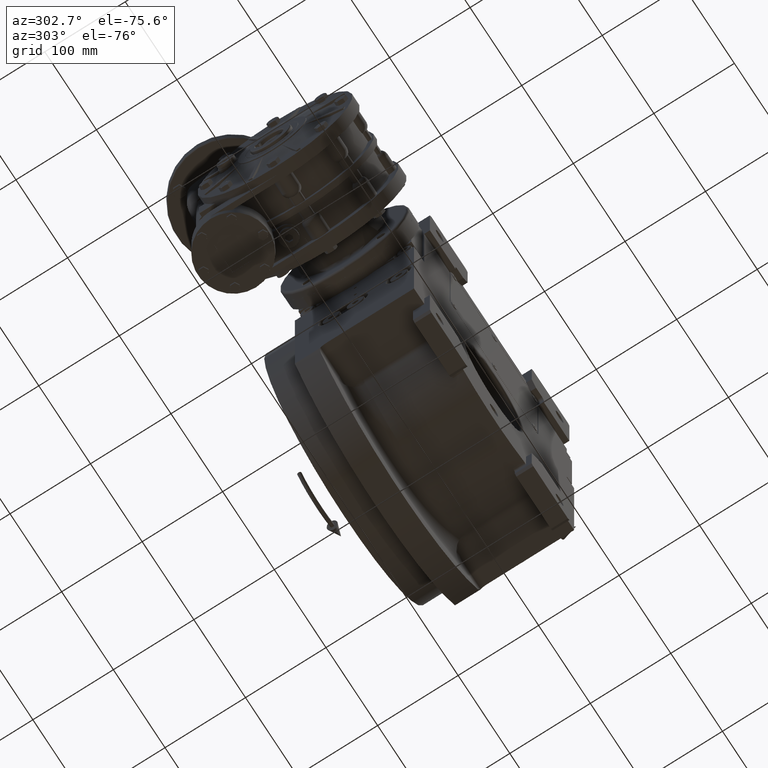
[diagram: clean part render]
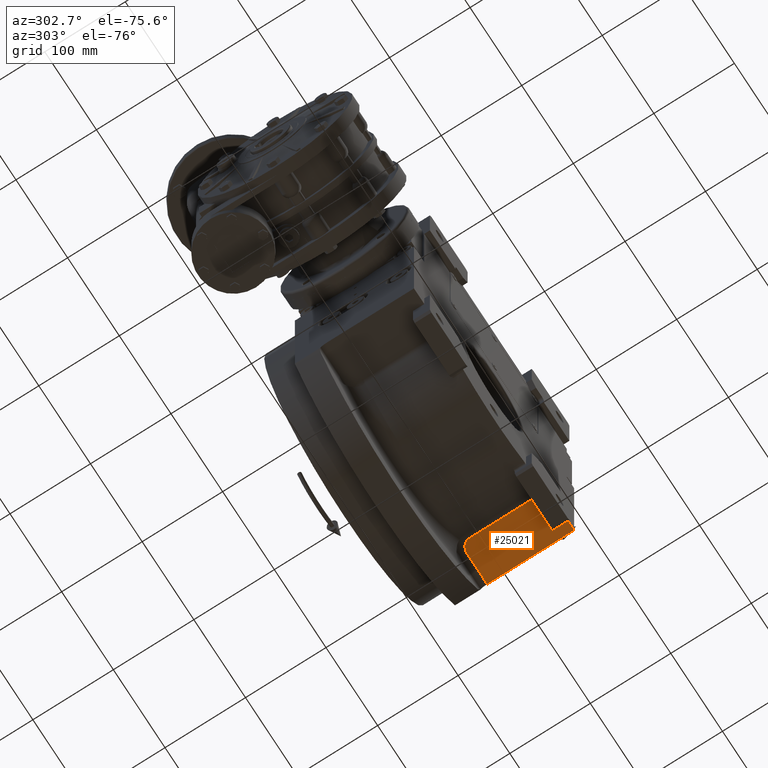
[diagram: same view with one face highlighted and labeled with its STEP entity id]
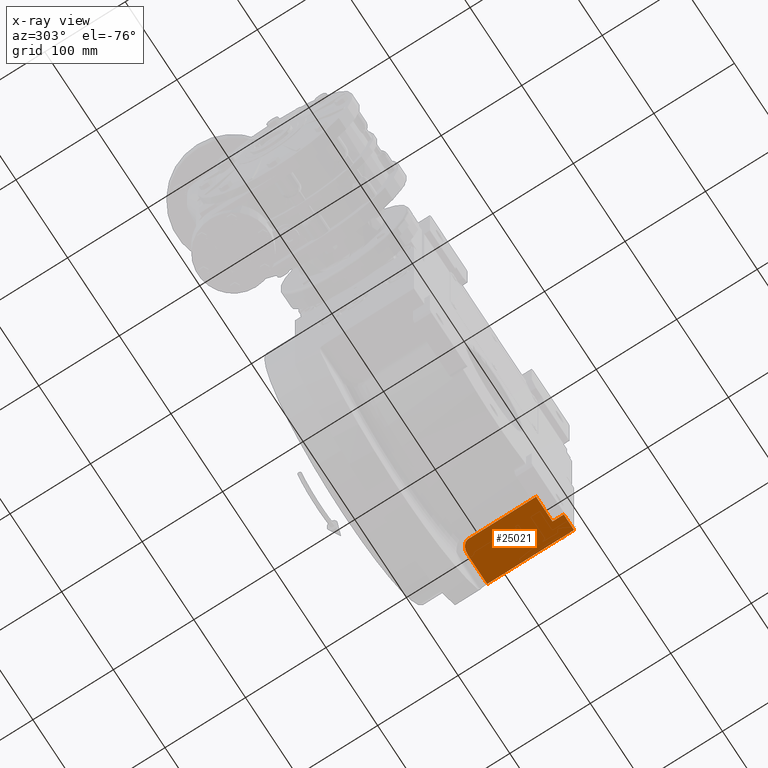
[diagram: x-ray of the same camera — body ghosted, the highlighted face saturated]
A machine part, auxiliary view. The second image highlights one B-rep face of the part: STEP entity #25021.
The next image is the same camera in x-ray: the body ghosted, the highlighted face saturated — about 0% of this face is hidden behind the body in this view.
In plain terms, the highlighted planar face has unit normal (0, 0, 1).
Its self-contained STEP definition (entity closure, byte-faithful):
#1584 = DIRECTION ( 'NONE',  ( 1.000000000000000000, 0.000000000000000000, 0.000000000000000000 ) ) ;
#3295 = PLANE ( 'NONE',  #91936 ) ;
#10238 = CARTESIAN_POINT ( 'NONE',  ( 155.0000000000000000, -73.00000000000000000, -96.00000000000000000 ) ) ;
#11134 = VECTOR ( 'NONE', #45373, 1000.000000000000000 ) ;
#12552 = B_SPLINE_CURVE_WITH_KNOTS ( 'NONE', 3,
 ( #47506, #13691, #111000, #39348, #84226, #48067, #67877, #57988, #31163, #101111 ),
 .UNSPECIFIED., .F., .F.,
 ( 4, 1, 1, 1, 1, 1, 1, 4 ),
 ( 0.000000000000000000, 0.1103361437858060012, 0.2306205650528145024, 0.3618368565218019750, 0.5071284336610569765, 0.6649997645452609962, 0.8312744473888740160, 1.000000000000000000 ),
 .UNSPECIFIED. ) ;
#13691 = CARTESIAN_POINT ( 'NONE',  ( 103.2967456917183995, 25.71117700569995179, -96.00000000000000000 ) ) ;
#19160 = VERTEX_POINT ( 'NONE', #51926 ) ;
#25021 = ADVANCED_FACE ( 'NONE', ( #92491 ), #3295, .F. ) ;
#27517 = ORIENTED_EDGE ( 'NONE', *, *, #93960, .T. ) ;
#28041 = LINE ( 'NONE', #63594, #85946 ) ;
#30118 = LINE ( 'NONE', #83736, #99934 ) ;
#31163 = CARTESIAN_POINT ( 'NONE',  ( 116.0970483025350006, 34.99988630677020041, -96.00000000000000000 ) ) ;
#31636 = VERTEX_POINT ( 'NONE', #38121 ) ;
#37667 = ORIENTED_EDGE ( 'NONE', *, *, #99867, .T. ) ;
#37985 = EDGE_CURVE ( 'NONE', #31636, #19160, #12552, .T. ) ;
#38121 = CARTESIAN_POINT ( 'NONE',  ( 103.2860102791958070, 24.99999999999110045, -96.00000000058339822 ) ) ;
#39348 = CARTESIAN_POINT ( 'NONE',  ( 104.4956882985132012, 29.22107301037640070, -96.00000000000000000 ) ) ;
#42166 = ORIENTED_EDGE ( 'NONE', *, *, #73135, .F. ) ;
#44920 = DIRECTION ( 'NONE',  ( -1.000000000000000000, 0.000000000000000000, 0.000000000000000000 ) ) ;
#45373 = DIRECTION ( 'NONE',  ( 0.000000000000000000, 1.000000000000000000, 0.000000000000000000 ) ) ;
#47506 = CARTESIAN_POINT ( 'NONE',  ( 103.2860102791958070, 24.99999999999110045, -96.00000000058339822 ) ) ;
#47641 = EDGE_CURVE ( 'NONE', #77540, #67878, #106673, .T. ) ;
#48067 = CARTESIAN_POINT ( 'NONE',  ( 108.3276946735049933, 32.76192004499164767, -96.00000000000000000 ) ) ;
#48384 = DIRECTION ( 'NONE',  ( -1.691768418476434837E-16, 1.000000000000000000, 0.000000000000000000 ) ) ;
#50142 = DIRECTION ( 'NONE',  ( 1.000000000000000000, 0.000000000000000000, 0.000000000000000000 ) ) ;
#50813 = CARTESIAN_POINT ( 'NONE',  ( 155.0000000000000000, -73.00000000000000000, -96.00000000000000000 ) ) ;
#51849 = CARTESIAN_POINT ( 'NONE',  ( 117.1665481270144085, 35.00000000000000000, -96.00000000000000000 ) ) ;
#51926 = CARTESIAN_POINT ( 'NONE',  ( 117.1665481270144085, 35.00000000000000000, -96.00000000000000000 ) ) ;
#52362 = EDGE_LOOP ( 'NONE', ( #105470, #37667, #62135, #42166, #95583, #53054, #27517 ) ) ;
#53054 = ORIENTED_EDGE ( 'NONE', *, *, #37985, .T. ) ;
#57988 = CARTESIAN_POINT ( 'NONE',  ( 114.0109502759944036, 34.81726578897210089, -96.00000000000000000 ) ) ;
#62135 = ORIENTED_EDGE ( 'NONE', *, *, #47641, .T. ) ;
#63594 = CARTESIAN_POINT ( 'NONE',  ( 155.0000000000000000, -73.00000000000000000, -96.00000000000000000 ) ) ;
#65314 = LINE ( 'NONE', #83362, #91912 ) ;
#65949 = VECTOR ( 'NONE', #50142, 1000.000000000000000 ) ;
#66276 = DIRECTION ( 'NONE',  ( 0.000000000000000000, 0.000000000000000000, 1.000000000000000000 ) ) ;
#67877 = CARTESIAN_POINT ( 'NONE',  ( 111.0037019574264008, 34.02142560456339737, -96.00000000000000000 ) ) ;
#67878 = VERTEX_POINT ( 'NONE', #108193 ) ;
#72729 = LINE ( 'NONE', #50813, #11134 ) ;
#73135 = EDGE_CURVE ( 'NONE', #82688, #67878, #30118, .T. ) ;
#77540 = VERTEX_POINT ( 'NONE', #81437 ) ;
#77786 = VERTEX_POINT ( 'NONE', #91216 ) ;
#80103 = VERTEX_POINT ( 'NONE', #10238 ) ;
#80452 = CARTESIAN_POINT ( 'NONE',  ( 135.0000000000000000, -73.00000000000000000, -96.00000000000000000 ) ) ;
#81014 = DIRECTION ( 'NONE',  ( 0.000000000000000000, 1.000000000000000000, 0.000000000000000000 ) ) ;
#81437 = CARTESIAN_POINT ( 'NONE',  ( 135.0000000000000000, -73.00000000000000000, -96.00000000000000000 ) ) ;
#82688 = VERTEX_POINT ( 'NONE', #101582 ) ;
#83362 = CARTESIAN_POINT ( 'NONE',  ( 103.2860106694029980, -59.00000000000000000, -96.00000000000000000 ) ) ;
#83736 = CARTESIAN_POINT ( 'NONE',  ( 103.2860106694029980, -59.00000000000000000, -96.00000000000000000 ) ) ;
#83763 = CARTESIAN_POINT ( 'NONE',  ( 155.0000000000000000, -73.00000000000000000, -96.00000000000000000 ) ) ;
#84226 = CARTESIAN_POINT ( 'NONE',  ( 106.1238245647938072, 31.12724743359949997, -96.00000000000000000 ) ) ;
#85946 = VECTOR ( 'NONE', #99131, 1000.000000000000000 ) ;
#91216 = CARTESIAN_POINT ( 'NONE',  ( 155.0000000000000000, 35.00000000000000000, -96.00000000000000000 ) ) ;
#91912 = VECTOR ( 'NONE', #48384, 1000.000000000000000 ) ;
#91936 = AXIS2_PLACEMENT_3D ( 'NONE', #83763, #66276, #44920 ) ;
#92491 = FACE_OUTER_BOUND ( 'NONE', #52362, .T. ) ;
#93960 = EDGE_CURVE ( 'NONE', #19160, #77786, #104895, .T. ) ;
#95583 = ORIENTED_EDGE ( 'NONE', *, *, #112862, .T. ) ;
#97430 = VECTOR ( 'NONE', #81014, 1000.000000000000000 ) ;
#97902 = EDGE_CURVE ( 'NONE', #80103, #77786, #72729, .T. ) ;
#99131 = DIRECTION ( 'NONE',  ( -1.000000000000000000, 0.000000000000000000, 0.000000000000000000 ) ) ;
#99867 = EDGE_CURVE ( 'NONE', #80103, #77540, #28041, .T. ) ;
#99934 = VECTOR ( 'NONE', #1584, 1000.000000000000000 ) ;
#101111 = CARTESIAN_POINT ( 'NONE',  ( 117.1665481270144085, 35.00000000000000000, -96.00000000000000000 ) ) ;
#101582 = CARTESIAN_POINT ( 'NONE',  ( 103.2860106694029980, -59.00000000000000000, -96.00000000000000000 ) ) ;
#104895 = LINE ( 'NONE', #51849, #65949 ) ;
#105470 = ORIENTED_EDGE ( 'NONE', *, *, #97902, .F. ) ;
#106673 = LINE ( 'NONE', #80452, #97430 ) ;
#108193 = CARTESIAN_POINT ( 'NONE',  ( 135.0000000000000000, -59.00000000000000000, -96.00000000000000000 ) ) ;
#111000 = CARTESIAN_POINT ( 'NONE',  ( 103.5011898096604028, 27.13477594283720151, -96.00000000000000000 ) ) ;
#112862 = EDGE_CURVE ( 'NONE', #82688, #31636, #65314, .T. ) ;